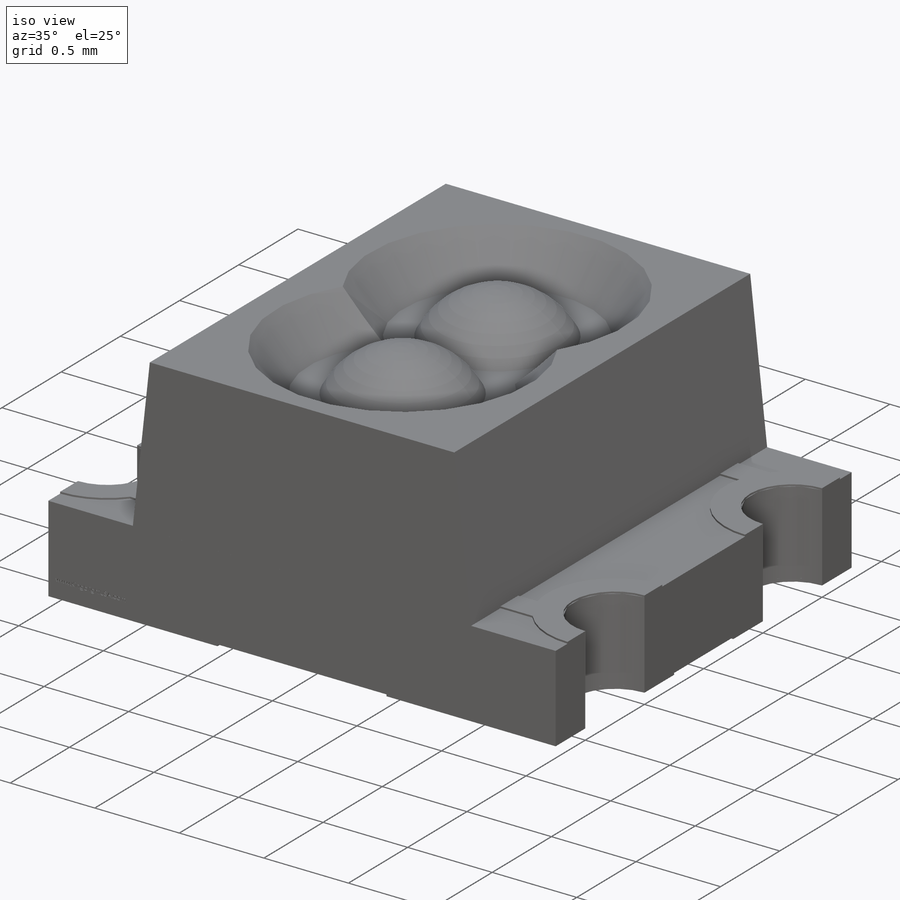
[diagram: iso view]
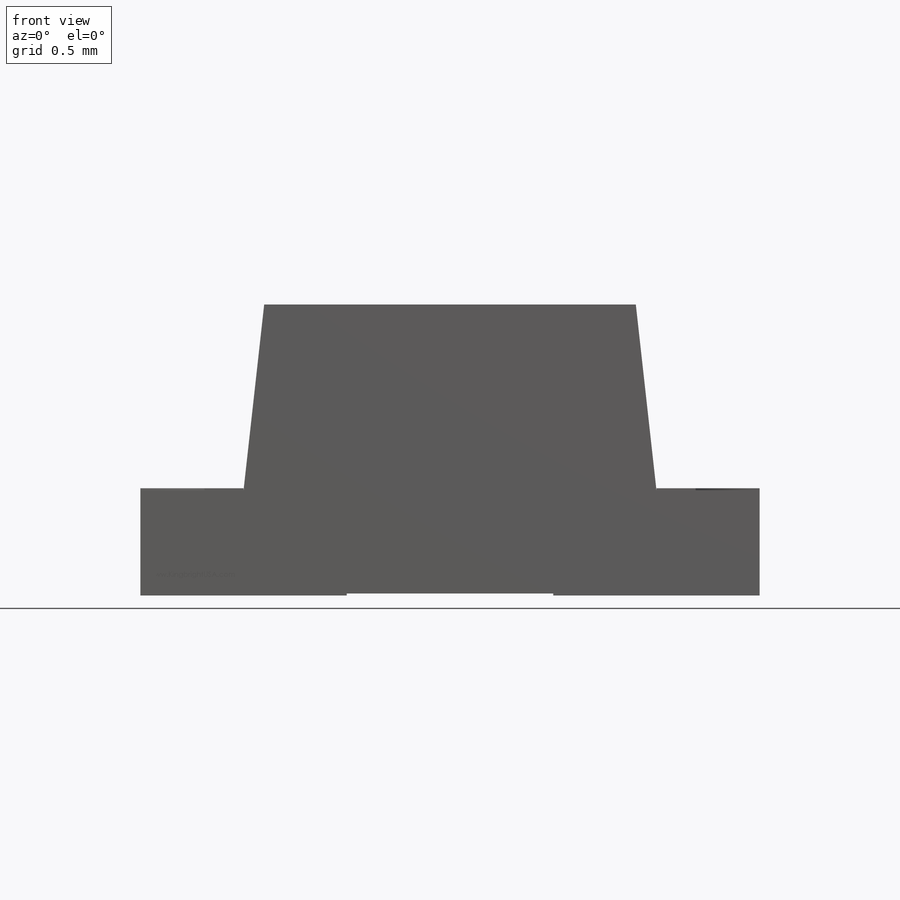
[diagram: front view]
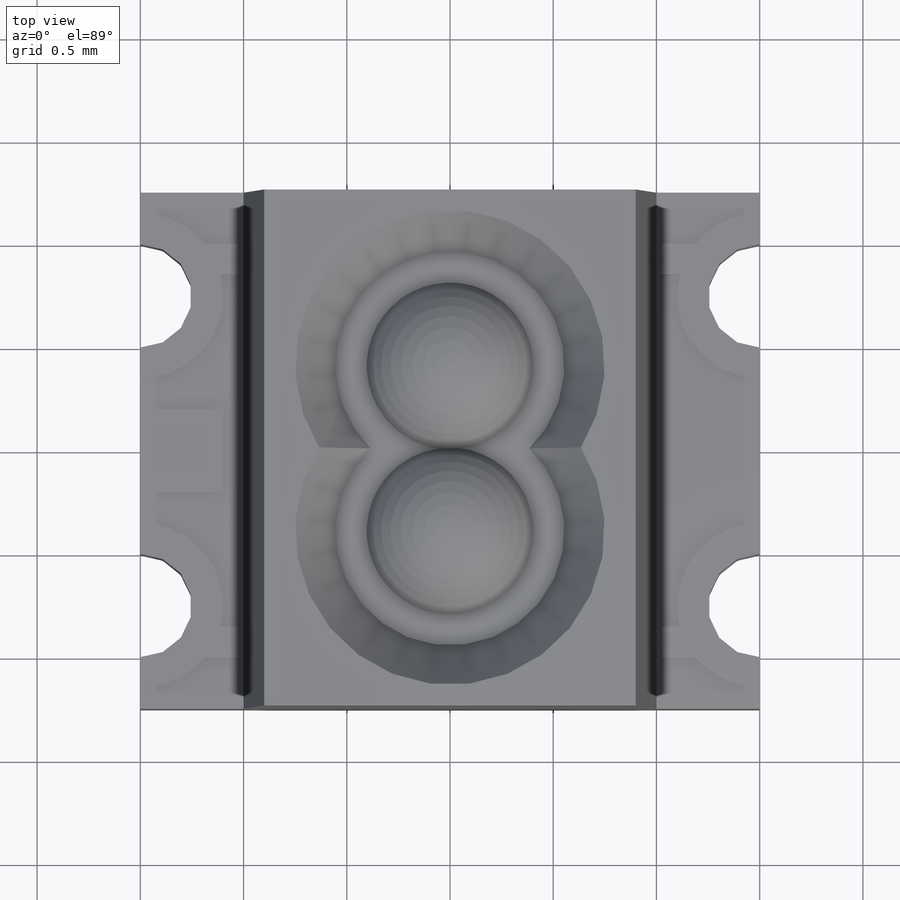
[diagram: top view]
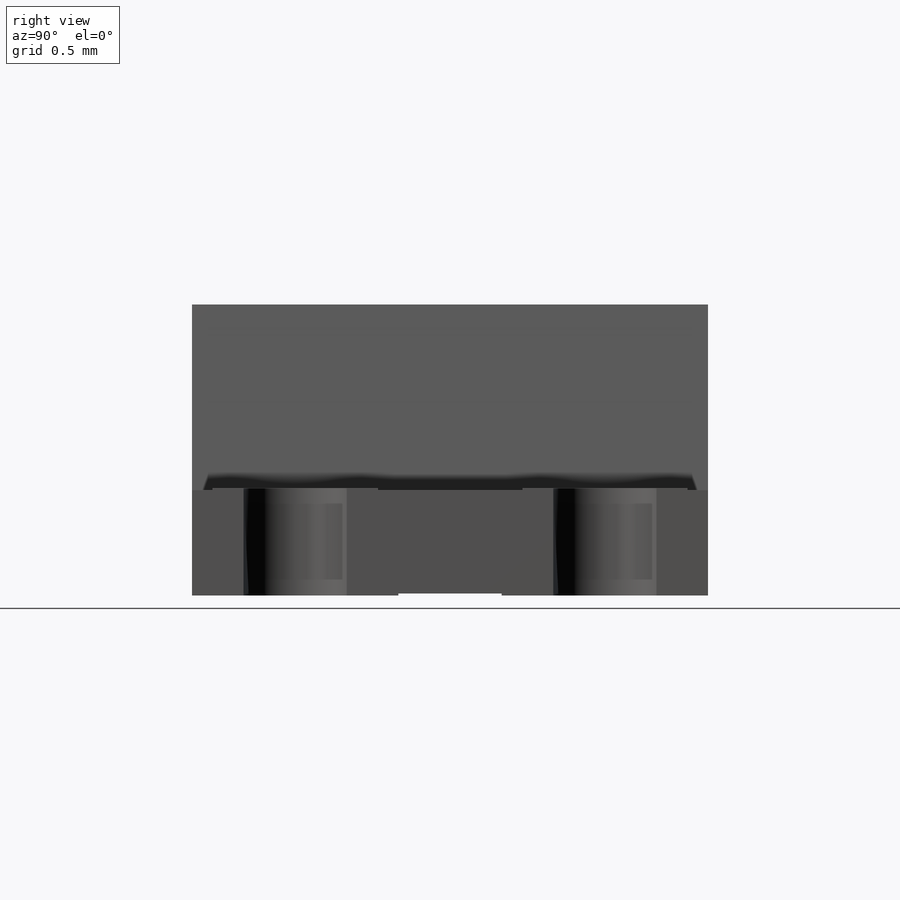
[diagram: right view]
SOLIDWORKS PART (.sldprt)
format: sldprt  version: not decoded by parser v0  size: 841,728 bytes
history: native  units: mm
features: sketch x10, extrude x5, cut_extrude x3, plane x3, revolve x2, material x1 (+11 scaffold rows collapsed)
feature tree (35):
  scaffold x11  (default folders/planes/origin — collapsed)
  material  "Material <not specified>"
  sketch  "Sketch1"  dims[D6=0.35mm D1=0.5mm D2=3.0mm D3=1.8mm D4=2.0mm D5=1.4mm]
  extrude  "Extrude1"  Depth=2.5mm
  extrude  "Extrude2"  [1 undecoded]
  sketch  "Sketch1<3>"  dims[D1=2.5mm]
  sketch  "Sketch3"  dims[D1=0.5mm D2=0.5mm D3=1.0mm D4=1.0mm]
  cut_extrude  "Cut-Extrude2"  [1 undecoded]
  extrude  "Extrude4"  [1 undecoded]
  sketch  "Sketch3<3>"  dims[D1=0.01mm D2=0.01mm]
  sketch  "Sketch4"  dims[c1.D1=0.15mm c1.D2=0.15mm c1.D3=0.4mm c1.D4=0.4mm c2.D1=0.15mm]
  extrude  "Extrude6"  [1 undecoded]
  sketch  "Sketch4<3>"  dims[D1=0.01mm D2=0.01mm]
  extrude  "Extrude7"  Depth=0.01mm
  sketch  "Sketch5"  dims[c1.D1=1.5mm c1.D2=0.9mm c1.D3=1.1mm c1.D4=0.8mm c2.D2=0.2mm]
  cut_extrude  "Cut-Extrude3"  Depth=0.25mm
  plane  "Plane1"  Offset=0.45mm
  sketch  "Sketch8"  dims[D1=0.08mm D2=0.5mm]
  cut_extrude  "Cut-Extrude4"  Depth=0.01mm
  plane  "Plane2"  Offset=0.4mm
  sketch  "Sketch9"  dims[D4=0.45mm D1=1.5mm D2=1.1mm D3=0.25mm]
  revolve  "Revolve10"  Angle=360deg
  plane  "Plane3"  Offset=0.8mm
  sketch  "Sketch10"
  revolve  "Revolve11"  Angle=360deg
decode coverage: 15 of 20 modeling features carry decoded parameters
note: 4 parameter values undecoded
summary: no parameter record found for 4 features
note: suppression state not decoded; provenance and decode notes live in map.json
